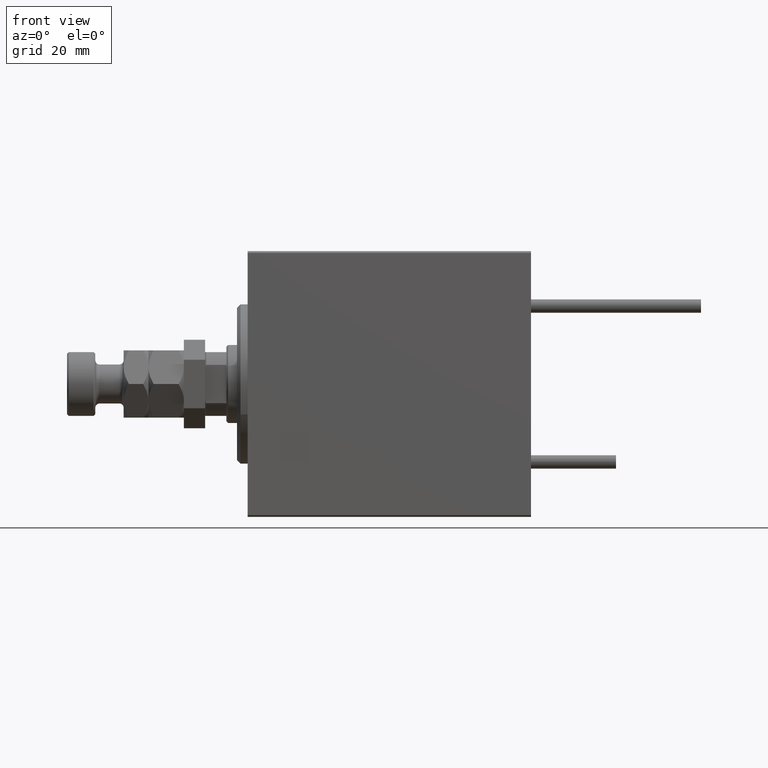
[diagram: clean part render]
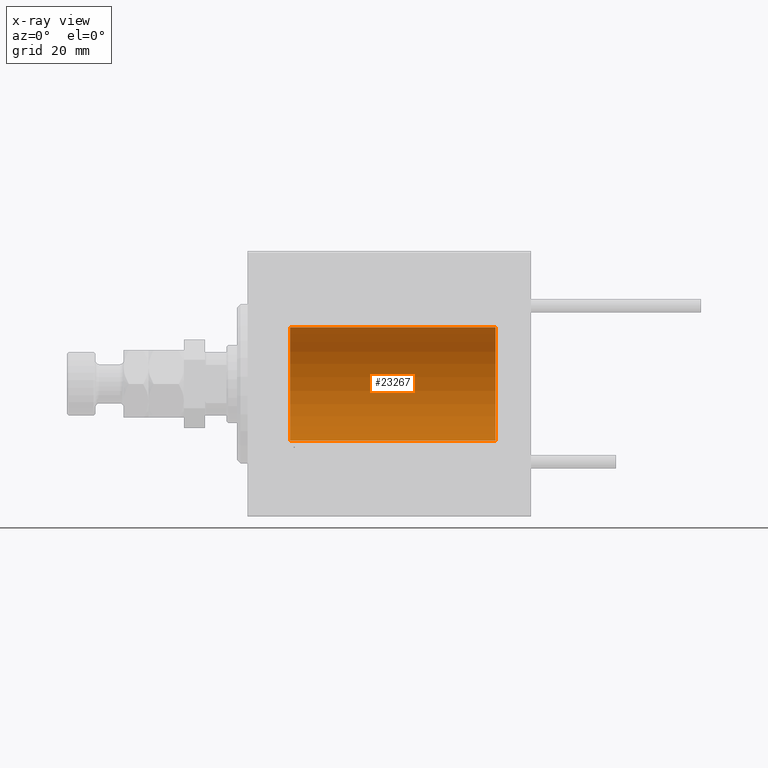
[diagram: x-ray — body ghosted, one internal face saturated and labeled with its STEP entity id]
A machine part, front view, then the same camera in x-ray: the body is ghosted and one INTERNAL B-rep face — a face not visible from any outside direction — is saturated and labeled: STEP entity #23267.
In plain terms, the highlighted cylindrical surface (partial cylindrical patch) has radius 16 mm, axis along (-1, -0, -0).
Its self-contained STEP definition (entity closure, byte-faithful):
#1396 = DIRECTION ( 'NONE',  ( 0.000000000000000000, 0.000000000000000000, 1.000000000000000000 ) ) ;
#1469 = ORIENTED_EDGE ( 'NONE', *, *, #31566, .T. ) ;
#1573 = ORIENTED_EDGE ( 'NONE', *, *, #23922, .F. ) ;
#2335 = DIRECTION ( 'NONE',  ( -1.000000000000000000, -0.000000000000000000, -0.000000000000000000 ) ) ;
#4819 = VERTEX_POINT ( 'NONE', #12392 ) ;
#5644 = CYLINDRICAL_SURFACE ( 'NONE', #44350, 16.00000000000000000 ) ;
#5991 = AXIS2_PLACEMENT_3D ( 'NONE', #49889, #45202, #1396 ) ;
#9544 = DIRECTION ( 'NONE',  ( -1.000000000000000000, 0.000000000000000000, 0.000000000000000000 ) ) ;
#9687 = EDGE_CURVE ( 'NONE', #48279, #25798, #29205, .T. ) ;
#11095 = VECTOR ( 'NONE', #27124, 1000.000000000000000 ) ;
#12392 = CARTESIAN_POINT ( 'NONE',  ( 11.99999999999999645, 1.959434878635765131E-15, -16.00000000000000000 ) ) ;
#12662 = VERTEX_POINT ( 'NONE', #16945 ) ;
#14333 = CARTESIAN_POINT ( 'NONE',  ( 70.00000000000000000, 0.000000000000000000, 16.00000000000000000 ) ) ;
#16945 = CARTESIAN_POINT ( 'NONE',  ( 70.00000000000000000, 1.959434878635765131E-15, -16.00000000000000000 ) ) ;
#17080 = EDGE_CURVE ( 'NONE', #48279, #12662, #38440, .T. ) ;
#20485 = AXIS2_PLACEMENT_3D ( 'NONE', #28575, #9544, #24658 ) ;
#23267 = ADVANCED_FACE ( 'NONE', ( #42136 ), #5644, .F. ) ;
#23922 = EDGE_CURVE ( 'NONE', #12662, #4819, #30002, .T. ) ;
#24658 = DIRECTION ( 'NONE',  ( 0.000000000000000000, 0.000000000000000000, 1.000000000000000000 ) ) ;
#25798 = VERTEX_POINT ( 'NONE', #29750 ) ;
#26466 = CARTESIAN_POINT ( 'NONE',  ( 70.00000000000000000, 0.000000000000000000, 16.00000000000000000 ) ) ;
#27124 = DIRECTION ( 'NONE',  ( -1.000000000000000000, -0.000000000000000000, -0.000000000000000000 ) ) ;
#27965 = ORIENTED_EDGE ( 'NONE', *, *, #9687, .T. ) ;
#28575 = CARTESIAN_POINT ( 'NONE',  ( 11.99999999999999645, 0.000000000000000000, 0.000000000000000000 ) ) ;
#29205 = LINE ( 'NONE', #14333, #30661 ) ;
#29617 = CARTESIAN_POINT ( 'NONE',  ( 70.00000000000000000, 0.000000000000000000, 0.000000000000000000 ) ) ;
#29750 = CARTESIAN_POINT ( 'NONE',  ( 11.99999999999999645, 0.000000000000000000, 16.00000000000000000 ) ) ;
#30002 = LINE ( 'NONE', #42263, #11095 ) ;
#30661 = VECTOR ( 'NONE', #2335, 1000.000000000000000 ) ;
#31566 = EDGE_CURVE ( 'NONE', #25798, #4819, #45475, .T. ) ;
#34007 = EDGE_LOOP ( 'NONE', ( #1573, #47026, #27965, #1469 ) ) ;
#38440 = CIRCLE ( 'NONE', #5991, 16.00000000000000000 ) ;
#41097 = DIRECTION ( 'NONE',  ( -1.000000000000000000, -0.000000000000000000, -0.000000000000000000 ) ) ;
#42136 = FACE_OUTER_BOUND ( 'NONE', #34007, .T. ) ;
#42263 = CARTESIAN_POINT ( 'NONE',  ( 70.00000000000000000, 1.959434878635765131E-15, -16.00000000000000000 ) ) ;
#44350 = AXIS2_PLACEMENT_3D ( 'NONE', #29617, #41097, #45538 ) ;
#45202 = DIRECTION ( 'NONE',  ( -1.000000000000000000, 0.000000000000000000, 0.000000000000000000 ) ) ;
#45475 = CIRCLE ( 'NONE', #20485, 16.00000000000000000 ) ;
#45538 = DIRECTION ( 'NONE',  ( 0.000000000000000000, 0.000000000000000000, 1.000000000000000000 ) ) ;
#47026 = ORIENTED_EDGE ( 'NONE', *, *, #17080, .F. ) ;
#48279 = VERTEX_POINT ( 'NONE', #26466 ) ;
#49889 = CARTESIAN_POINT ( 'NONE',  ( 70.00000000000000000, 0.000000000000000000, 0.000000000000000000 ) ) ;